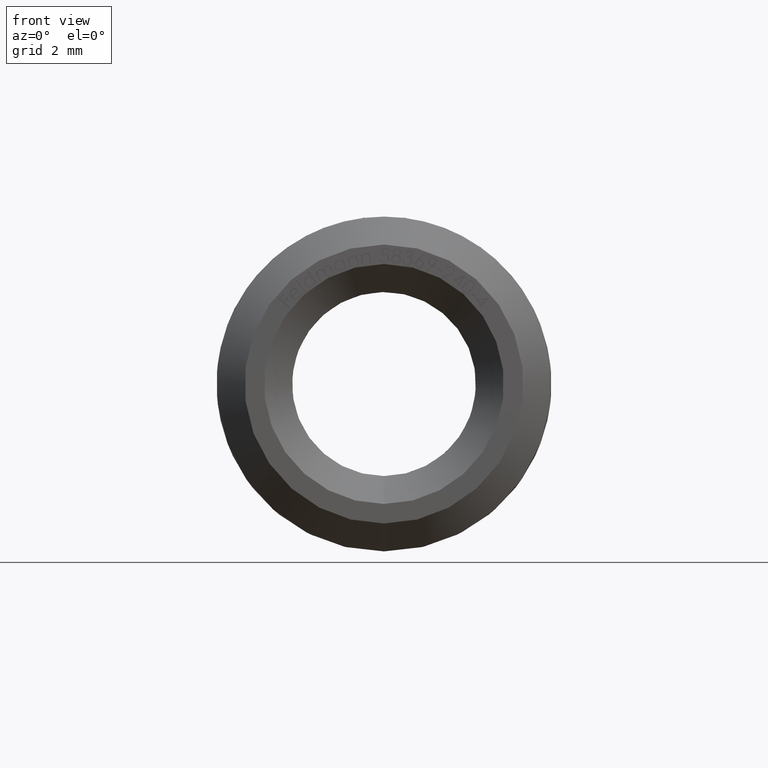
[diagram: clean part render]
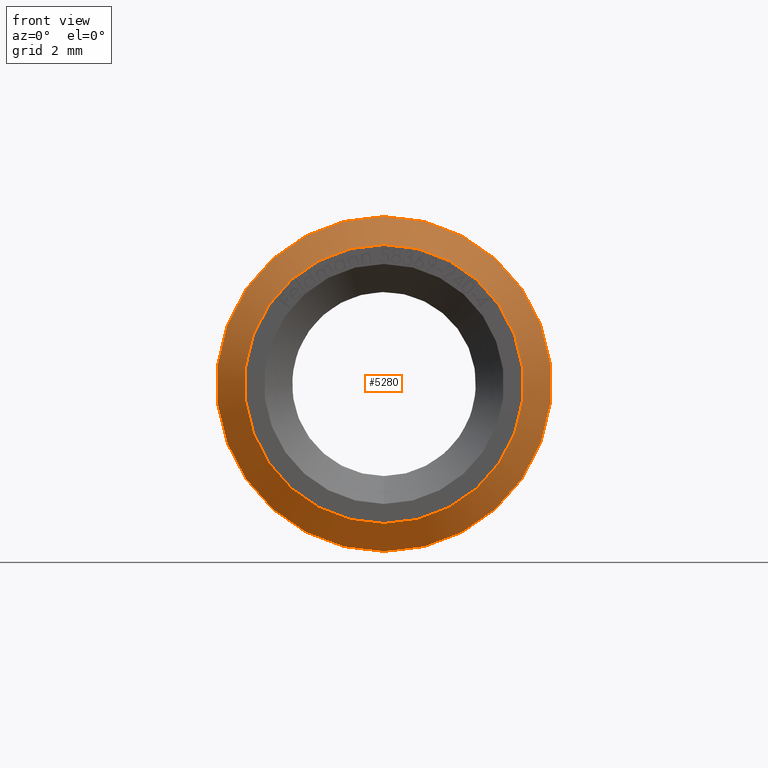
[diagram: same view with one face highlighted and labeled with its STEP entity id]
A machine part, front view. The second image highlights one B-rep face of the part: STEP entity #5280.
In plain terms, the highlighted conical surface has half-angle 45 deg.
Its self-contained STEP definition (entity closure, byte-faithful):
#936 = CIRCLE ( 'NONE', #15476, 3.000000000000000000 ) ;
#1469 = EDGE_CURVE ( 'NONE', #3463, #3463, #12621, .T. ) ;
#2921 = DIRECTION ( 'NONE',  ( 0.0000000000000000000, 0.0000000000000000000, 1.000000000000000000 ) ) ;
#3463 = VERTEX_POINT ( 'NONE', #13645 ) ;
#3935 = DIRECTION ( 'NONE',  ( 0.0000000000000000000, 0.0000000000000000000, -1.000000000000000000 ) ) ;
#3982 = CONICAL_SURFACE ( 'NONE', #12215, 2.499999999999998200, 0.7853981633974482800 ) ;
#5280 = ADVANCED_FACE ( 'NONE', ( #7254, #13489 ), #3982, .T. ) ;
#6002 = ORIENTED_EDGE ( 'NONE', *, *, #1469, .F. ) ;
#6495 = DIRECTION ( 'NONE',  ( 0.0000000000000000000, 1.000000000000000000, 0.0000000000000000000 ) ) ;
#6984 = ORIENTED_EDGE ( 'NONE', *, *, #11264, .F. ) ;
#7254 = FACE_OUTER_BOUND ( 'NONE', #12281, .T. ) ;
#7508 = DIRECTION ( 'NONE',  ( 0.0000000000000000000, 1.000000000000000000, 0.0000000000000000000 ) ) ;
#8158 = CARTESIAN_POINT ( 'NONE',  ( 0.0000000000000000000, 3.931003375417200000E-016, 0.0000000000000000000 ) ) ;
#11264 = EDGE_CURVE ( 'NONE', #11627, #11627, #936, .T. ) ;
#11627 = VERTEX_POINT ( 'NONE', #12441 ) ;
#11896 = AXIS2_PLACEMENT_3D ( 'NONE', #8158, #13085, #15502 ) ;
#12215 = AXIS2_PLACEMENT_3D ( 'NONE', #13736, #6495, #2921 ) ;
#12281 = EDGE_LOOP ( 'NONE', ( #6984 ) ) ;
#12441 = CARTESIAN_POINT ( 'NONE',  ( 0.0000000000000000000, 0.5000000000000022200, -3.000000000000000000 ) ) ;
#12621 = CIRCLE ( 'NONE', #11896, 2.499999999999998200 ) ;
#13085 = DIRECTION ( 'NONE',  ( -0.0000000000000000000, -1.000000000000000000, -0.0000000000000000000 ) ) ;
#13413 = EDGE_LOOP ( 'NONE', ( #6002 ) ) ;
#13489 = FACE_BOUND ( 'NONE', #13413, .T. ) ;
#13645 = CARTESIAN_POINT ( 'NONE',  ( 0.0000000000000000000, 3.931003375417200000E-016, -2.499999999999998200 ) ) ;
#13683 = CARTESIAN_POINT ( 'NONE',  ( 0.0000000000000000000, 0.5000000000000022200, 0.0000000000000000000 ) ) ;
#13736 = CARTESIAN_POINT ( 'NONE',  ( 0.0000000000000000000, 3.931003375417200000E-016, 0.0000000000000000000 ) ) ;
#15476 = AXIS2_PLACEMENT_3D ( 'NONE', #13683, #7508, #3935 ) ;
#15502 = DIRECTION ( 'NONE',  ( 0.0000000000000000000, 0.0000000000000000000, -1.000000000000000000 ) ) ;